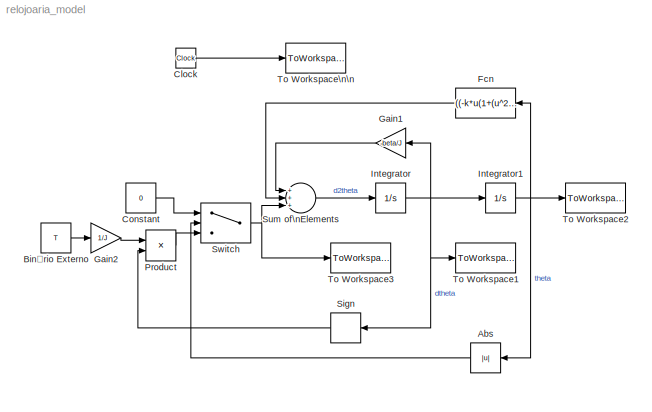
MODEL relojoaria_model
KIND model
BLOCK [Abs] Abs
  SID = 24
  SaturateOnIntegerOverflow = off
BLOCK [Constant] Binário Externo
  SID = 13
  Value = T
BLOCK [Clock] Clock
  SID = 1
BLOCK [Constant] Constant
  SID = 18
  Value = 0
BLOCK [Fcn] Fcn
  Expr = ((-k*u(1+(u^2)/100))+(M*g*(L/2)*sin(u)) +(m*g*l*sin(u)))/J
  SID = 15
BLOCK [Gain] Gain1
  Gain = -beta/J
  OutDataTypeStr = Inherit: Inherit via internal rule
  ParamDataTypeStr = Inherit: Inherit via internal rule
  SID = 4
  SaturateOnIntegerOverflow = off
BLOCK [Gain] Gain2
  Gain = 1/J
  OutDataTypeStr = Inherit: Inherit via internal rule
  ParamDataTypeStr = Inherit: Inherit via internal rule
  SID = 14
  SaturateOnIntegerOverflow = off
BLOCK [Integrator] Integrator
  InitialCondition = x0(2)
  Ports = [1, 1]
  SID = 7
BLOCK [Integrator] Integrator1
  InitialCondition = x0(1)
  Ports = [1, 1]
  SID = 8
BLOCK [Product] Product
  InputSameDT = off
  OutDataTypeStr = Inherit: Inherit via internal rule
  Ports = [2, 1]
  RndMeth = Floor
  SID = 22
  SaturateOnIntegerOverflow = off
BLOCK [Signum] Sign
  SID = 23
BLOCK [Sum] Sum of\nElements
  InputSameDT = off
  Inputs = +++
  OutDataTypeStr = Inherit: Inherit via internal rule
  Ports = [3, 1]
  SID = 12
  SaturateOnIntegerOverflow = off
BLOCK [Switch] Switch
  InputSameDT = off
  SID = 17
  SaturateOnIntegerOverflow = off
  Threshold = threshold_v
BLOCK [ToWorkspace] To Workspace1
  FixptAsFi = on
  MaxDataPoints = inf
  Ports = [1]
  SID = 9
  SampleTime = -1
  Save2DSignal = 3-D array (concatenate along third dimension)
  VariableName = dteta
BLOCK [ToWorkspace] To Workspace2
  FixptAsFi = on
  MaxDataPoints = inf
  Ports = [1]
  SID = 10
  SampleTime = -1
  Save2DSignal = 3-D array (concatenate along third dimension)
  VariableName = teta
BLOCK [ToWorkspace] To Workspace3
  FixptAsFi = on
  MaxDataPoints = inf
  Ports = [1]
  SID = 20
  SampleTime = -1
  Save2DSignal = 3-D array (concatenate along third dimension)
  VariableName = T_app
BLOCK [ToWorkspace] To Workspace\n\n
  FixptAsFi = on
  MaxDataPoints = inf
  Ports = [1]
  SID = 2
  SampleTime = -1
  Save2DSignal = 3-D array (concatenate along third dimension)
  VariableName = t
LINE Abs:1 -> Switch:2
LINE Binário Externo:1 -> Gain2:1
LINE Clock:1 -> To Workspace\n\n:1
LINE Constant:1 -> Switch:1
LINE Fcn:1 -> Sum of\nElements:2
LINE Gain1:1 -> Sum of\nElements:1
LINE Gain2:1 -> Product:1
NET Integrator1:1 -> Abs:1, Fcn:1, To Workspace2:1
NET Integrator:1 -> Gain1:1, Integrator1:1, Sign:1, To Workspace1:1
LINE Product:1 -> Switch:3
LINE Sign:1 -> Product:2
LINE Sum of\nElements:1 -> Integrator:1
NET Switch:1 -> Sum of\nElements:3, To Workspace3:1
note: NET lines group one-source signal fan-out (src -> all destinations, sorted); 1:1 wires keep LINE
